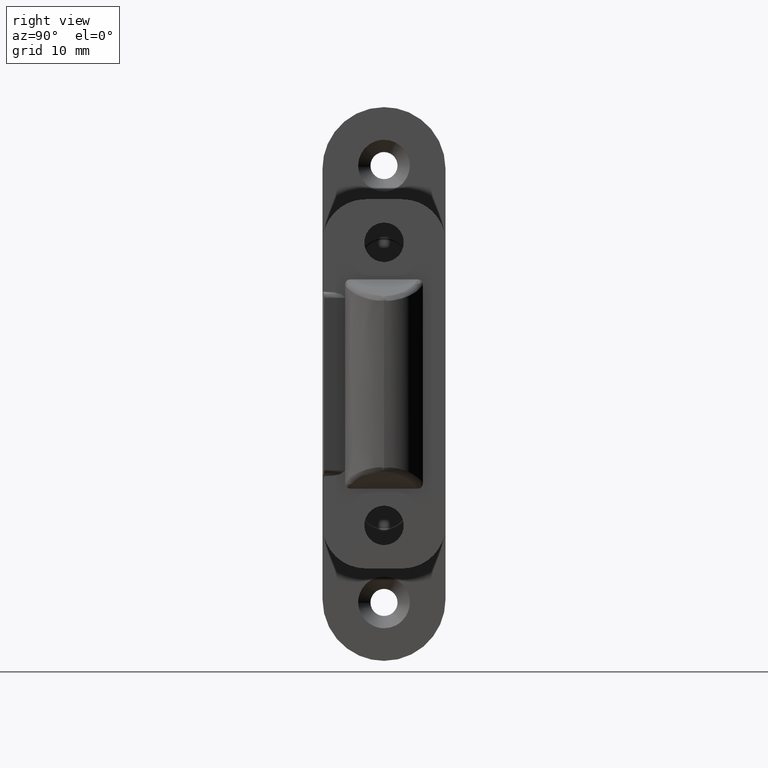
[diagram: clean part render]
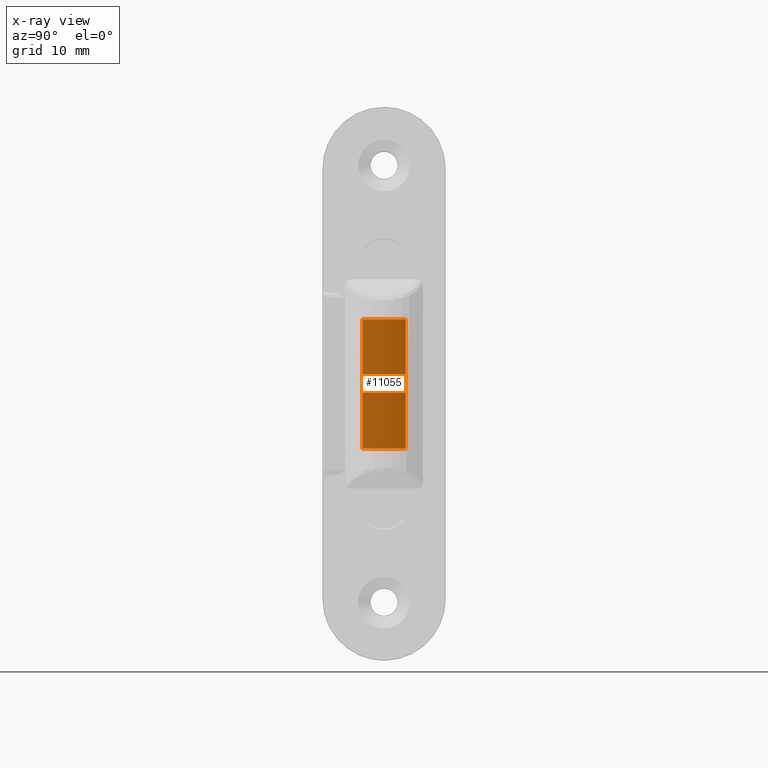
[diagram: x-ray — body ghosted, one internal face saturated and labeled with its STEP entity id]
A machine part, right view, then the same camera in x-ray: the body is ghosted and one INTERNAL B-rep face — a face not visible from any outside direction — is saturated and labeled: STEP entity #11055.
In plain terms, the highlighted face is a freeform B-spline surface patch.
Its self-contained STEP definition (entity closure, byte-faithful):
#10859=CARTESIAN_POINT('',(-6.500000000000000,3.499999999999950,-10.500000000000000));
#10860=VERTEX_POINT('',#10859);
#10866=CARTESIAN_POINT('',(-6.500000000000000,-3.499999999999950,-10.500000000000000));
#10867=VERTEX_POINT('',#10866);
#10868=CARTESIAN_POINT('',(-6.500000000000000,-3.499999999999950,-10.500000000000000));
#10869=CARTESIAN_POINT('',(-6.500000000000000,3.499999999999950,-10.500000000000000));
#10870=QUASI_UNIFORM_CURVE('',1,(#10868,#10869),.UNSPECIFIED.,.F.,.U.);
#10871=EDGE_CURVE('',#10867,#10860,#10870,.T.);
#10999=CARTESIAN_POINT('',(-6.500000000000000,3.499999999999950,10.500000000000000));
#11000=VERTEX_POINT('',#10999);
#11006=CARTESIAN_POINT('',(-6.500000000000000,3.499999999999950,10.500000000000000));
#11007=CARTESIAN_POINT('',(-6.500000000000000,3.499999999999950,-10.500000000000000));
#11008=QUASI_UNIFORM_CURVE('',1,(#11006,#11007),.UNSPECIFIED.,.F.,.U.);
#11009=EDGE_CURVE('',#11000,#10860,#11008,.T.);
#11022=CARTESIAN_POINT('',(-6.500000000000000,-3.499999999999950,10.500000000000000));
#11023=VERTEX_POINT('',#11022);
#11024=CARTESIAN_POINT('',(-6.500000000000000,-3.499999999999950,10.500000000000000));
#11025=CARTESIAN_POINT('',(-6.500000000000000,-3.499999999999950,-10.500000000000000));
#11026=QUASI_UNIFORM_CURVE('',1,(#11024,#11025),.UNSPECIFIED.,.F.,.U.);
#11027=EDGE_CURVE('',#11023,#10867,#11026,.T.);
#11040=CARTESIAN_POINT('',(-6.500000000000000,-3.849649986432587,11.548949959297930));
#11041=CARTESIAN_POINT('',(-6.500000000000000,-3.849649986432587,-11.548950522561819));
#11042=CARTESIAN_POINT('',(-6.500000000000000,3.849650174187218,11.548949959297930));
#11043=CARTESIAN_POINT('',(-6.500000000000000,3.849650174187218,-11.548950522561819));
#11044=B_SPLINE_SURFACE_WITH_KNOTS('',1,1,((#11040,#11042),(#11041,#11043)),.UNSPECIFIED.,.F.,.F.,.U.,(2,2),(2,2),(0.0,23.097900481859750),(0.0,7.699300160619805),.UNSPECIFIED.);
#11045=ORIENTED_EDGE('',*,*,#11009,.F.);
#11046=CARTESIAN_POINT('',(-6.500000000000000,-3.499999999999950,10.500000000000000));
#11047=CARTESIAN_POINT('',(-6.500000000000000,3.499999999999950,10.500000000000000));
#11048=QUASI_UNIFORM_CURVE('',1,(#11046,#11047),.UNSPECIFIED.,.F.,.U.);
#11049=EDGE_CURVE('',#11023,#11000,#11048,.T.);
#11050=ORIENTED_EDGE('',*,*,#11049,.F.);
#11051=ORIENTED_EDGE('',*,*,#11027,.T.);
#11052=ORIENTED_EDGE('',*,*,#10871,.T.);
#11053=EDGE_LOOP('',(#11045,#11050,#11051,#11052));
#11054=FACE_OUTER_BOUND('',#11053,.T.);
#11055=ADVANCED_FACE('',(#11054),#11044,.T.);